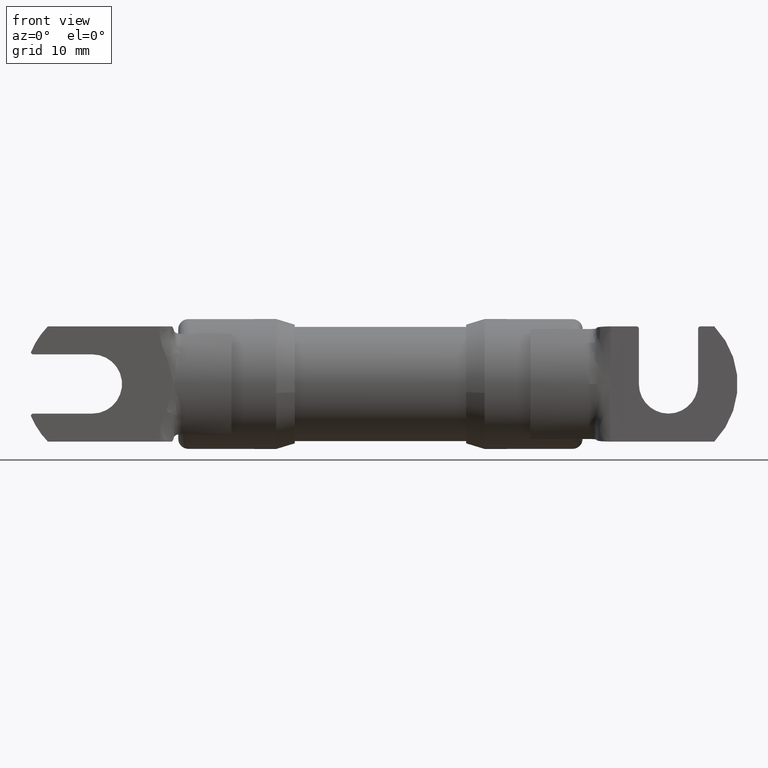
[diagram: clean part render]
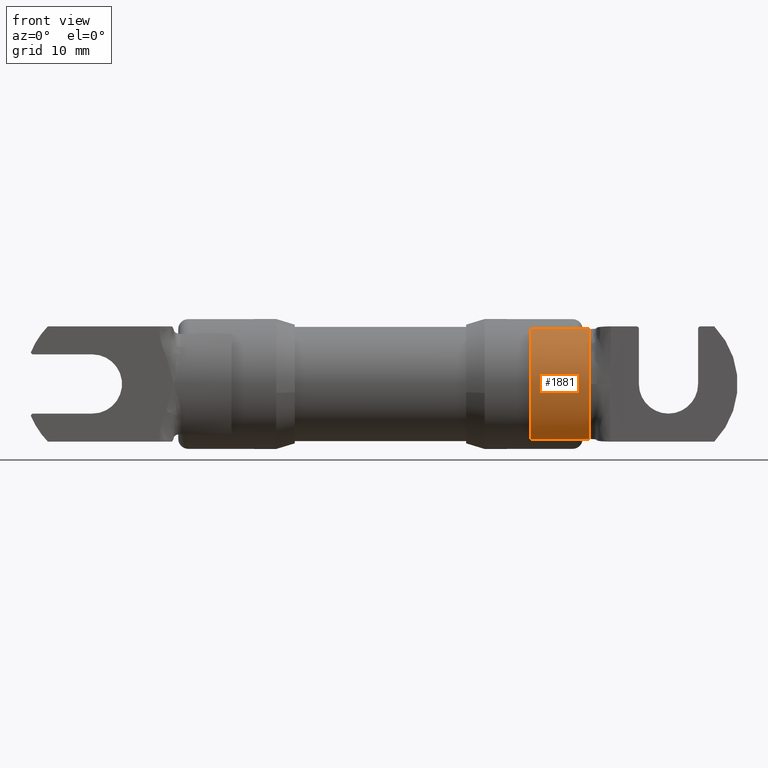
[diagram: same view with one face highlighted and labeled with its STEP entity id]
A machine part, front view. The second image highlights one B-rep face of the part: STEP entity #1881.
In plain terms, the highlighted cylindrical surface (partial cylindrical patch) has radius 8.095 mm, axis along (1, 0, -0).
Its self-contained STEP definition (entity closure, byte-faithful):
#38 = DIRECTION ( 'NONE',  ( 4.285924056580269800E-016, 6.736418044025527000E-017, -1.000000000000000000 ) ) ;
#143 = CARTESIAN_POINT ( 'NONE',  ( 0.9069999999999989200, -0.3186999999999992100, -0.04496244496935689100 ) ) ;
#146 = EDGE_LOOP ( 'NONE', ( #1660, #959, #3543, #2655, #3128 ) ) ;
#221 = EDGE_CURVE ( 'NONE', #4434, #5738, #3299, .T. ) ;
#222 = CARTESIAN_POINT ( 'NONE',  ( 0.9069999999999999200, -0.3186644823820886100, 0.02281452306541191500 ) ) ;
#269 = CARTESIAN_POINT ( 'NONE',  ( 0.9069999999999999200, -0.3186996071294472300, 0.0005000000010222032700 ) ) ;
#314 = CARTESIAN_POINT ( 'NONE',  ( 0.6499999999999999100, -3.467365283782447500E-017, -4.903215283739029400E-016 ) ) ;
#580 = CARTESIAN_POINT ( 'NONE',  ( 0.6499999999999999100, -0.2111770093663554700, -0.2386921882154558500 ) ) ;
#773 = DIRECTION ( 'NONE',  ( -4.285924056580269800E-016, -6.736418044025527000E-017, 1.000000000000000000 ) ) ;
#904 = DIRECTION ( 'NONE',  ( 1.000000000000000000, 1.179611963664232000E-016, -3.349005604171012100E-016 ) ) ;
#959 = ORIENTED_EDGE ( 'NONE', *, *, #2539, .F. ) ;
#1025 = EDGE_CURVE ( 'NONE', #5738, #4568, #1042, .T. ) ;
#1042 = B_SPLINE_CURVE_WITH_KNOTS ( 'NONE', 3,
 ( #3835, #1543, #2000, #5144, #143, #2039 ),
 .UNSPECIFIED., .F., .F.,
 ( 4, 2, 4 ),
 ( 0.0000000000000000000, 0.2500000000000000600, 0.5000000000000000000 ),
 .UNSPECIFIED. ) ;
#1227 = VECTOR ( 'NONE', #5580, 39.37007874015748100 ) ;
#1543 = CARTESIAN_POINT ( 'NONE',  ( 0.9069999999999994700, -0.2448518897468147400, -0.2088991707619635400 ) ) ;
#1660 = ORIENTED_EDGE ( 'NONE', *, *, #1025, .T. ) ;
#1847 = FACE_OUTER_BOUND ( 'NONE', #146, .T. ) ;
#1851 = CARTESIAN_POINT ( 'NONE',  ( 0.9069999999999999200, -0.2280144494113630100, 0.2237956796171906800 ) ) ;
#1881 = ADVANCED_FACE ( 'NONE', ( #1847 ), #2328, .T. ) ;
#2000 = CARTESIAN_POINT ( 'NONE',  ( 0.9069999999999994700, -0.2721116394795065600, -0.1718911490373987700 ) ) ;
#2039 = CARTESIAN_POINT ( 'NONE',  ( 0.9069999999999999200, -0.3186996071294472300, 0.0005000000010222032700 ) ) ;
#2319 = DIRECTION ( 'NONE',  ( 1.000000000000000000, 1.179611963664232000E-016, -3.349005604171012100E-016 ) ) ;
#2328 = CYLINDRICAL_SURFACE ( 'NONE', #5264, 0.3186999999999999300 ) ;
#2422 = LINE ( 'NONE', #5564, #1227 ) ;
#2539 = EDGE_CURVE ( 'NONE', #5119, #4568, #2566, .T. ) ;
#2566 = B_SPLINE_CURVE_WITH_KNOTS ( 'NONE', 3,
 ( #4510, #1851, #4946, #3688, #3661, #222, #2624 ),
 .UNSPECIFIED., .F., .F.,
 ( 4, 1, 1, 1, 4 ),
 ( 0.0000000000000000000, 0.2500000000000000600, 0.4999999999999998900, 0.7499999999999998900, 0.9981466036554483800 ),
 .UNSPECIFIED. ) ;
#2624 = CARTESIAN_POINT ( 'NONE',  ( 0.9069999999999999200, -0.3186996071294472300, 0.0005000000010222032700 ) ) ;
#2655 = ORIENTED_EDGE ( 'NONE', *, *, #5726, .F. ) ;
#2679 = VERTEX_POINT ( 'NONE', #4065 ) ;
#3128 = ORIENTED_EDGE ( 'NONE', *, *, #221, .T. ) ;
#3299 = LINE ( 'NONE', #5014, #5493 ) ;
#3433 = CARTESIAN_POINT ( 'NONE',  ( 0.9069999999999999200, -0.2111770093663553300, 0.2386921882154547900 ) ) ;
#3442 = DIRECTION ( 'NONE',  ( -1.000000000000000000, -1.179611963664232000E-016, 3.349005604171012600E-016 ) ) ;
#3543 = ORIENTED_EDGE ( 'NONE', *, *, #5585, .F. ) ;
#3661 = CARTESIAN_POINT ( 'NONE',  ( 0.9069999999999999200, -0.3138741116260542800, 0.06760227700113728700 ) ) ;
#3688 = CARTESIAN_POINT ( 'NONE',  ( 0.9069999999999999200, -0.2927558163583129400, 0.1318768793213550600 ) ) ;
#3835 = CARTESIAN_POINT ( 'NONE',  ( 0.9069999999999999200, -0.2111770093663553300, -0.2386921882154559600 ) ) ;
#3907 = CARTESIAN_POINT ( 'NONE',  ( 0.9069999999999999200, -0.2111770093663553300, -0.2386921882154559600 ) ) ;
#4065 = CARTESIAN_POINT ( 'NONE',  ( 0.6499999999999999100, -0.2111770093663555800, 0.2386921882154546500 ) ) ;
#4224 = CIRCLE ( 'NONE', #4391, 0.3186999999999999300 ) ;
#4391 = AXIS2_PLACEMENT_3D ( 'NONE', #314, #3442, #773 ) ;
#4434 = VERTEX_POINT ( 'NONE', #580 ) ;
#4510 = CARTESIAN_POINT ( 'NONE',  ( 0.9069999999999999200, -0.2111770093663553300, 0.2386921882154547900 ) ) ;
#4568 = VERTEX_POINT ( 'NONE', #269 ) ;
#4946 = CARTESIAN_POINT ( 'NONE',  ( 0.9069999999999999200, -0.2585258020331269200, 0.1904278784074793500 ) ) ;
#5014 = CARTESIAN_POINT ( 'NONE',  ( 0.6499999999999999100, -0.2111770093663554700, -0.2386921882154558500 ) ) ;
#5119 = VERTEX_POINT ( 'NONE', #3433 ) ;
#5144 = CARTESIAN_POINT ( 'NONE',  ( 0.9069999999999993600, -0.3090454870965278500, -0.08990104761843340000 ) ) ;
#5264 = AXIS2_PLACEMENT_3D ( 'NONE', #5542, #904, #38 ) ;
#5493 = VECTOR ( 'NONE', #2319, 39.37007874015748100 ) ;
#5542 = CARTESIAN_POINT ( 'NONE',  ( 0.6499999999999999100, -3.467365283782447500E-017, -4.903215283739029400E-016 ) ) ;
#5564 = CARTESIAN_POINT ( 'NONE',  ( 0.6499999999999999100, -0.2111770093663555800, 0.2386921882154546500 ) ) ;
#5580 = DIRECTION ( 'NONE',  ( 1.000000000000000000, 1.179611963664232000E-016, -3.349005604171012100E-016 ) ) ;
#5585 = EDGE_CURVE ( 'NONE', #2679, #5119, #2422, .T. ) ;
#5726 = EDGE_CURVE ( 'NONE', #4434, #2679, #4224, .T. ) ;
#5738 = VERTEX_POINT ( 'NONE', #3907 ) ;